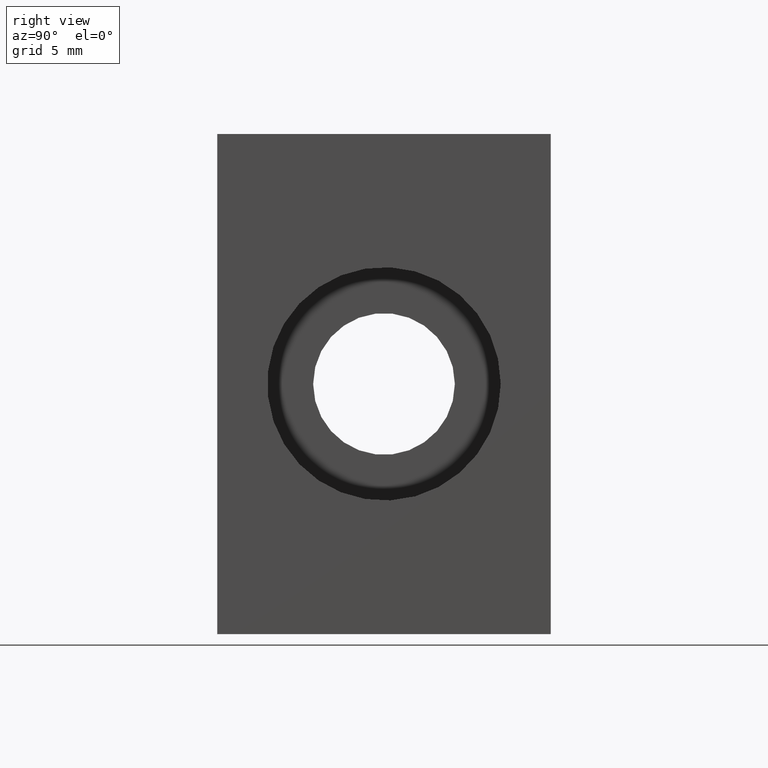
[diagram: clean part render]
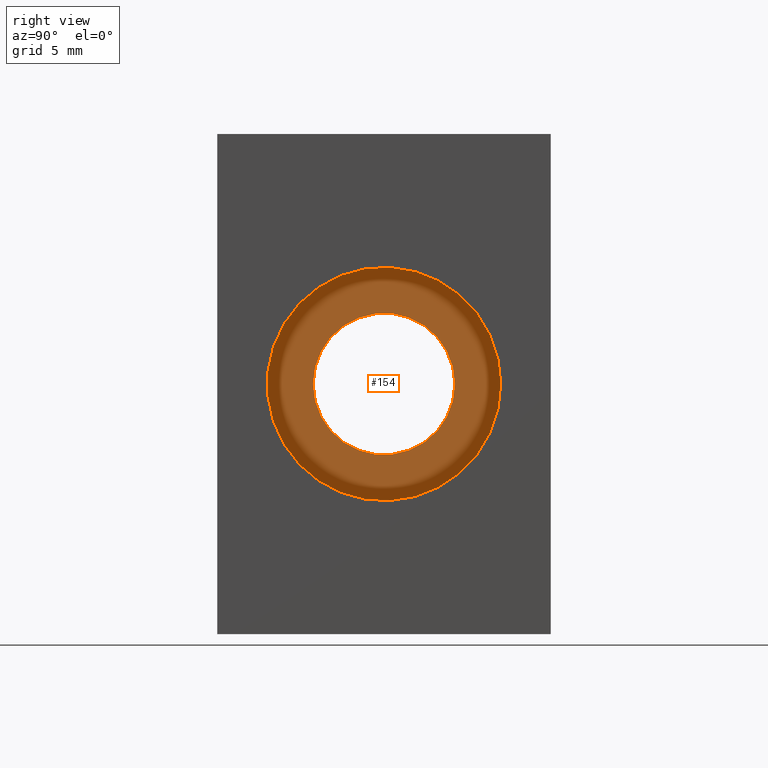
[diagram: same view with one face highlighted and labeled with its STEP entity id]
A machine part, right view. The second image highlights one B-rep face of the part: STEP entity #154.
In plain terms, the highlighted planar face has unit normal (-1, 0, 0).
Its self-contained STEP definition (entity closure, byte-faithful):
#17=FACE_BOUND('',#45,.T.);
#24=PLANE('',#190);
#33=FACE_OUTER_BOUND('',#44,.T.);
#44=EDGE_LOOP('',(#142));
#45=EDGE_LOOP('',(#143));
#74=CIRCLE('',#179,4.25);
#77=CIRCLE('',#183,7.);
#78=VERTEX_POINT('',#235);
#81=VERTEX_POINT('',#243);
#90=EDGE_CURVE('',#78,#78,#74,.T.);
#95=EDGE_CURVE('',#81,#81,#77,.T.);
#142=ORIENTED_EDGE('',*,*,#95,.T.);
#143=ORIENTED_EDGE('',*,*,#90,.T.);
#154=ADVANCED_FACE('',(#33,#17),#24,.F.);
#179=AXIS2_PLACEMENT_3D('',#236,#195,#196);
#183=AXIS2_PLACEMENT_3D('',#245,#205,#206);
#190=AXIS2_PLACEMENT_3D('',#272,#231,#232);
#195=DIRECTION('center_axis',(-1.,0.,0.));
#196=DIRECTION('ref_axis',(0.,0.,1.));
#205=DIRECTION('center_axis',(1.,0.,0.));
#206=DIRECTION('ref_axis',(0.,0.,-1.));
#231=DIRECTION('center_axis',(-1.,0.,0.));
#232=DIRECTION('ref_axis',(0.,0.,1.));
#235=CARTESIAN_POINT('',(-8.00000000000001,4.25,-5.20474889637625E-16));
#236=CARTESIAN_POINT('Origin',(-8.00000000000001,3.552714E-15,0.));
#243=CARTESIAN_POINT('',(-8.00000000000001,7.00000000000001,-8.57252759403148E-16));
#245=CARTESIAN_POINT('Origin',(-8.00000000000001,0.,0.));
#272=CARTESIAN_POINT('Origin',(-8.00000000000001,-7.7,-7.7));